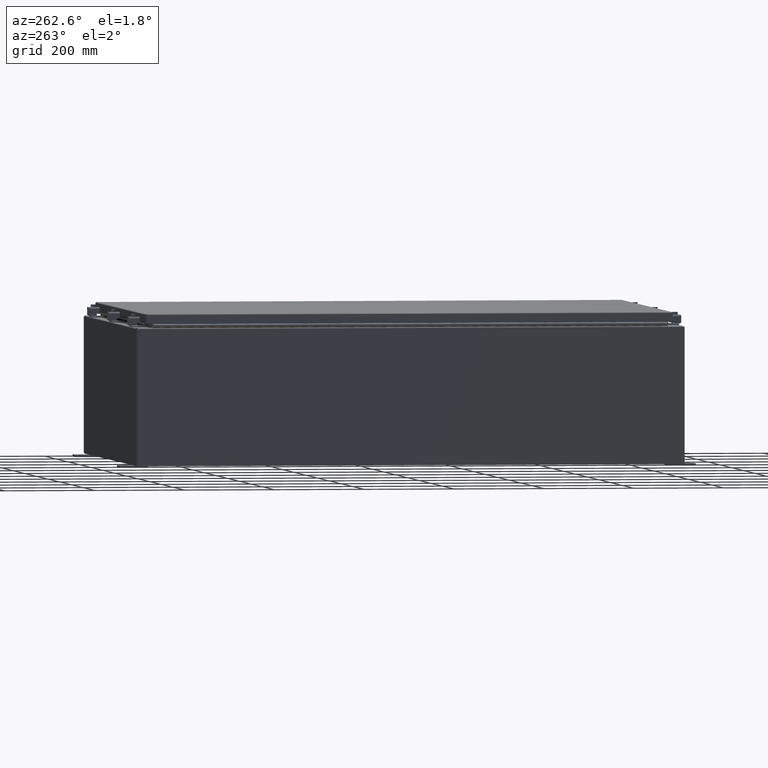
[diagram: clean part render]
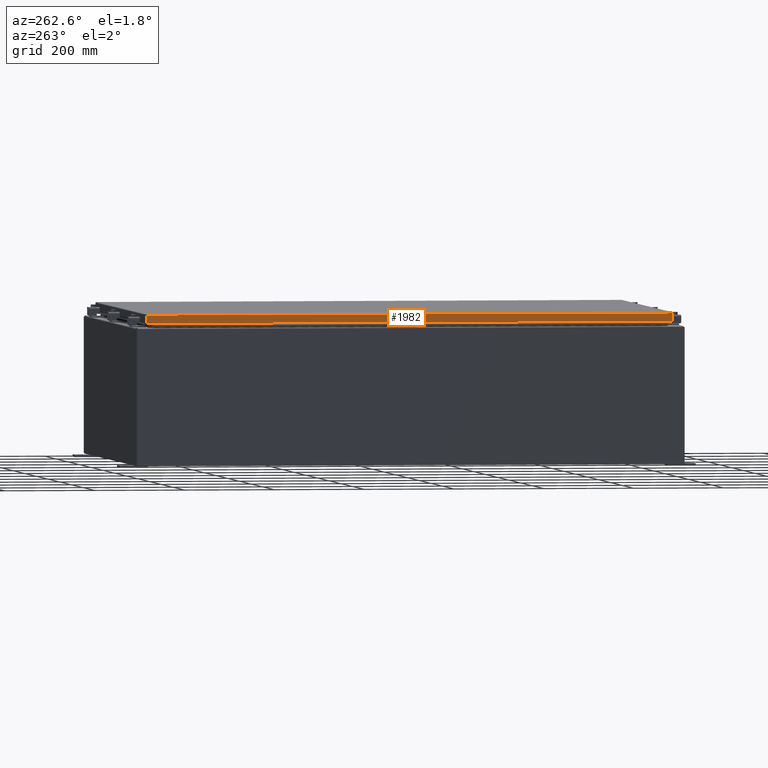
[diagram: same view with one face highlighted and labeled with its STEP entity id]
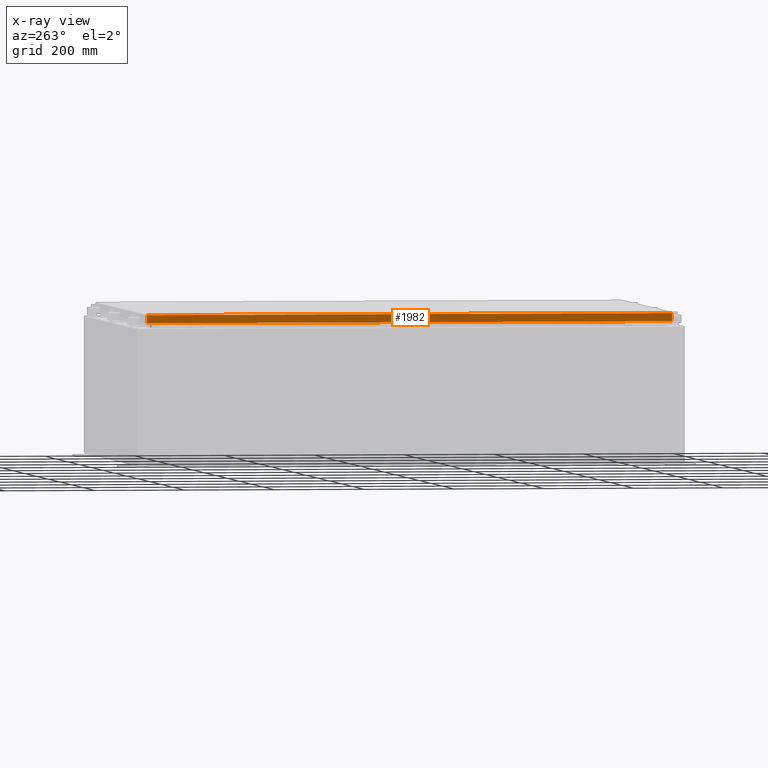
[diagram: x-ray of the same camera — body ghosted, the highlighted face saturated]
A machine part, auxiliary view. The second image highlights one B-rep face of the part: STEP entity #1982.
The next image is the same camera in x-ray: the body ghosted, the highlighted face saturated — about 0% of this face is hidden behind the body in this view.
In plain terms, the highlighted planar face has unit normal (1, -0, -0).
Its self-contained STEP definition (entity closure, byte-faithful):
#1211 = CARTESIAN_POINT ( 'NONE',  ( -17.07799999999999600, 23.00515786437627200, 2.127217154807312100E-013 ) ) ;
#1982 = ADVANCED_FACE ( 'NONE', ( #4731 ), #23281, .F. ) ;
#4731 = FACE_OUTER_BOUND ( 'NONE', #46264, .T. ) ;
#6576 = ORIENTED_EDGE ( 'NONE', *, *, #53810, .F. ) ;
#8321 = EDGE_CURVE ( 'NONE', #24997, #12642, #24265, .T. ) ;
#8536 = DIRECTION ( 'NONE',  ( -3.034122441942816100E-015, 6.982962677686267500E-015, -1.000000000000000000 ) ) ;
#8544 = CARTESIAN_POINT ( 'NONE',  ( -17.07799999999999900, -23.00515786437627200, -0.07469999999999976700 ) ) ;
#9885 = DIRECTION ( 'NONE',  ( 1.000000000000000000, -9.463403459476060900E-017, -3.034122441942816500E-015 ) ) ;
#12106 = VECTOR ( 'NONE', #52071, 39.37007874015748100 ) ;
#12642 = VERTEX_POINT ( 'NONE', #42010 ) ;
#14721 = LINE ( 'NONE', #8544, #46671 ) ;
#17199 = EDGE_CURVE ( 'NONE', #12642, #39838, #14721, .T. ) ;
#17963 = CARTESIAN_POINT ( 'NONE',  ( -17.07800000000000300, -23.00515786437626900, -0.7949999999999996000 ) ) ;
#18379 = CARTESIAN_POINT ( 'NONE',  ( -17.07799999999999600, 1.616160042809321200E-015, 5.207755671951099000E-014 ) ) ;
#18463 = AXIS2_PLACEMENT_3D ( 'NONE', #18379, #9885, #23934 ) ;
#18821 = ORIENTED_EDGE ( 'NONE', *, *, #17199, .F. ) ;
#22842 = CARTESIAN_POINT ( 'NONE',  ( -17.07800000000000300, -23.09400000000000100, -0.7949999999999997100 ) ) ;
#23281 = PLANE ( 'NONE',  #18463 ) ;
#23934 = DIRECTION ( 'NONE',  ( -3.034122441942816500E-015, 0.0000000000000000000, -1.000000000000000000 ) ) ;
#24265 = LINE ( 'NONE', #32825, #46490 ) ;
#24997 = VERTEX_POINT ( 'NONE', #37385 ) ;
#27994 = VECTOR ( 'NONE', #42848, 39.37007874015748100 ) ;
#32711 = DIRECTION ( 'NONE',  ( -9.463403459476019000E-017, -1.000000000000000000, 1.419510518921414800E-016 ) ) ;
#32825 = CARTESIAN_POINT ( 'NONE',  ( -17.07799999999999900, -23.09400000000000100, -0.08770000000000004200 ) ) ;
#37385 = CARTESIAN_POINT ( 'NONE',  ( -17.07799999999999600, 23.00515786437627200, -0.08770000000000659200 ) ) ;
#39151 = LINE ( 'NONE', #1211, #27994 ) ;
#39838 = VERTEX_POINT ( 'NONE', #17963 ) ;
#40709 = ORIENTED_EDGE ( 'NONE', *, *, #8321, .F. ) ;
#41659 = VERTEX_POINT ( 'NONE', #51302 ) ;
#42010 = CARTESIAN_POINT ( 'NONE',  ( -17.07799999999999900, -23.00515786437626900, -0.08770000000000334500 ) ) ;
#42848 = DIRECTION ( 'NONE',  ( -3.034122441942816100E-015, 6.982962677686267500E-015, -1.000000000000000000 ) ) ;
#43972 = LINE ( 'NONE', #22842, #12106 ) ;
#45759 = EDGE_CURVE ( 'NONE', #24997, #41659, #39151, .T. ) ;
#46264 = EDGE_LOOP ( 'NONE', ( #40709, #49058, #6576, #18821 ) ) ;
#46490 = VECTOR ( 'NONE', #32711, 39.37007874015748100 ) ;
#46671 = VECTOR ( 'NONE', #8536, 39.37007874015748100 ) ;
#49058 = ORIENTED_EDGE ( 'NONE', *, *, #45759, .T. ) ;
#51302 = CARTESIAN_POINT ( 'NONE',  ( -17.07799999999999600, 23.00515786437627600, -0.7949999999999941600 ) ) ;
#52071 = DIRECTION ( 'NONE',  ( 9.463403459476099200E-017, 1.000000000000000000, 1.212498568245375300E-016 ) ) ;
#53810 = EDGE_CURVE ( 'NONE', #39838, #41659, #43972, .T. ) ;